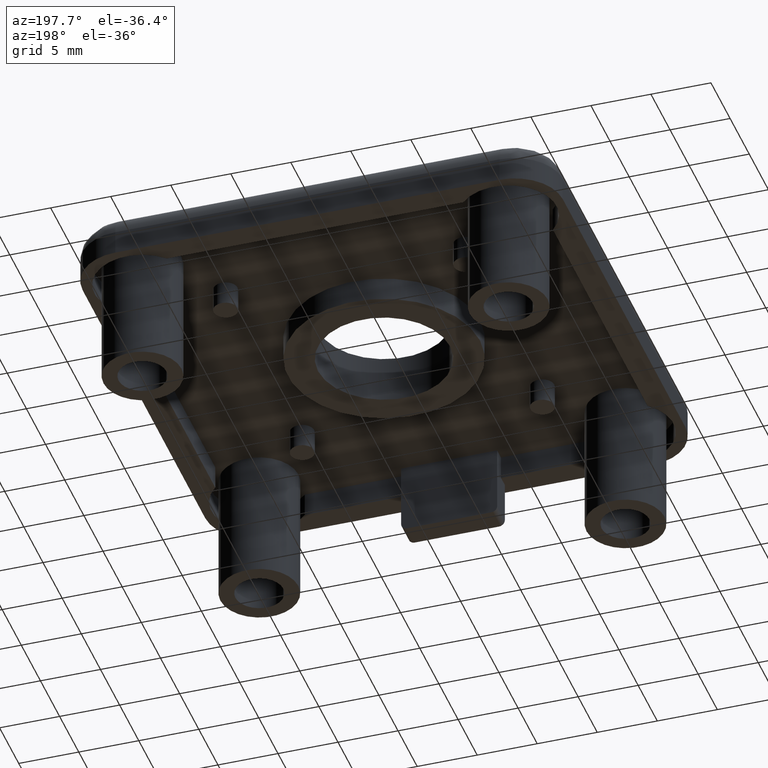
[diagram: clean part render]
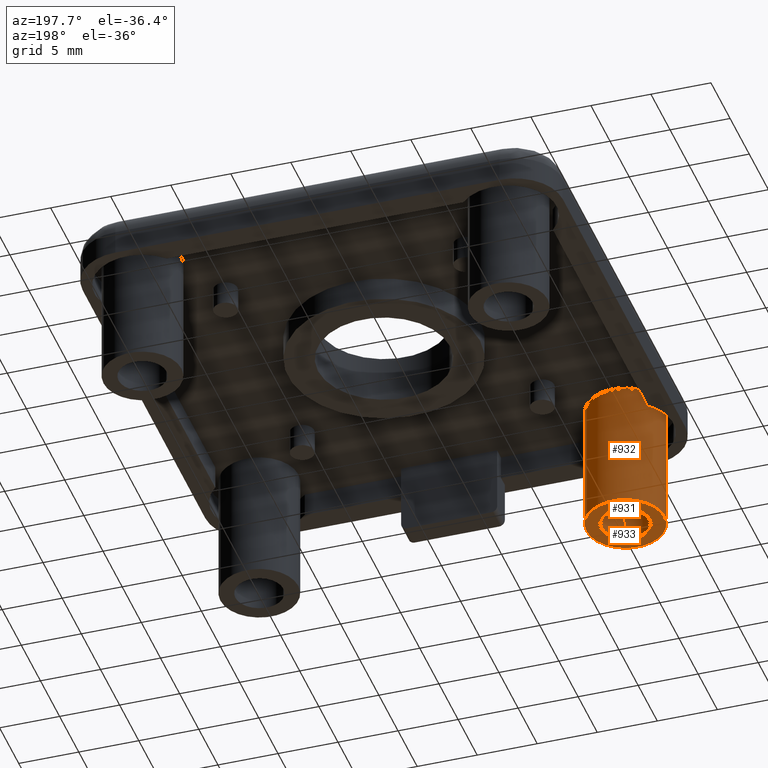
[diagram: same view with one multi-face feature highlighted, each face labeled with its STEP entity id]
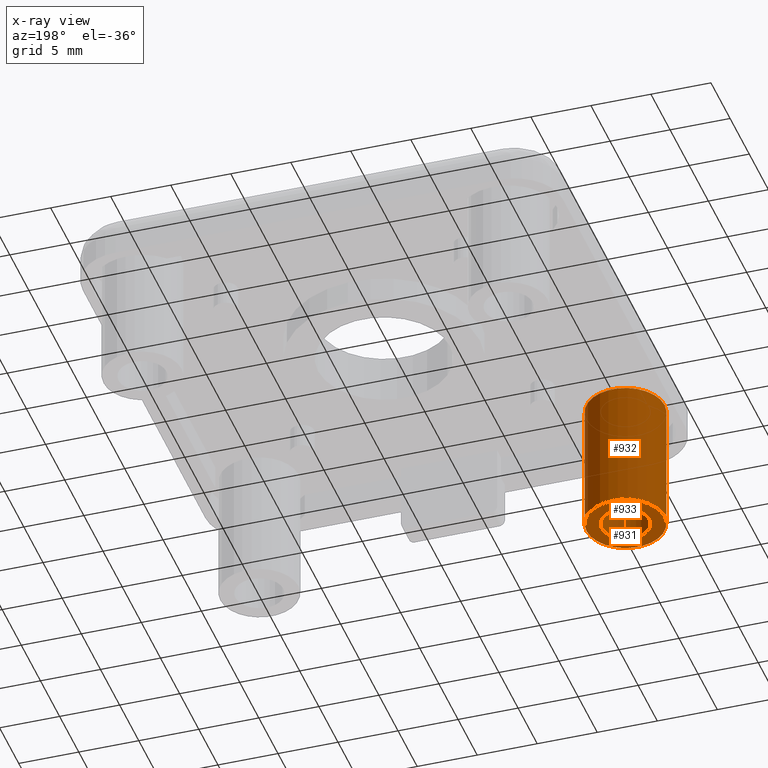
[diagram: x-ray of the same camera — body ghosted, the whole feature saturated]
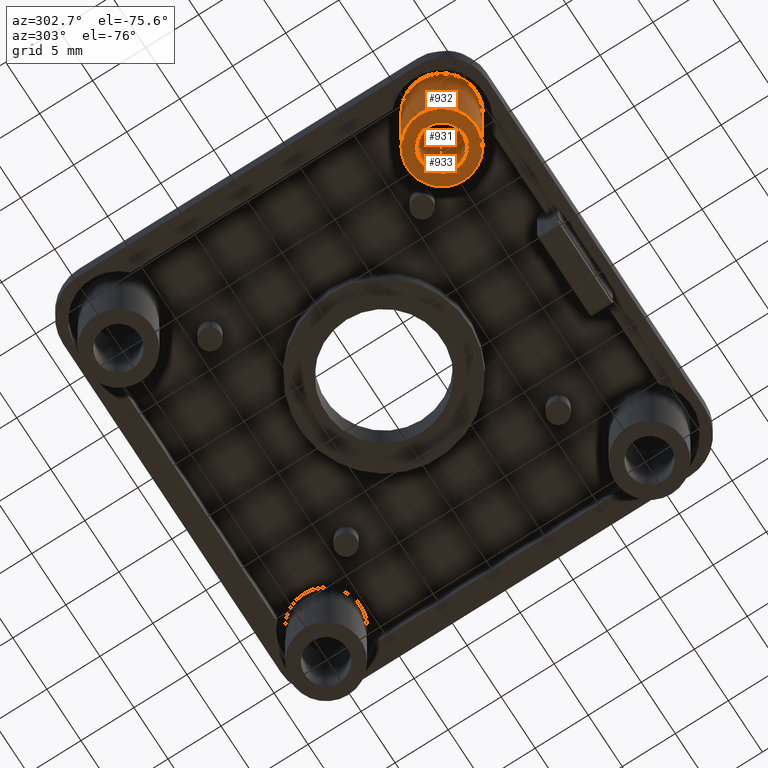
[diagram: same view with one multi-face feature highlighted, each face labeled with its STEP entity id]
A machine part, auxiliary view. The highlighted faces form ONE feature: a stepped (counterbored) hole: 2 coaxial cylindrical walls of radii 2 -> 3.25 mm joined by 1 annular planar shoulder face(s). The faces share edges in the B-rep.
The next image is the same camera in x-ray: the body ghosted and the whole hole feature saturated, so the bore chain is visible through the body.
A second angle (auxiliary view) of the same feature is appended — it is thin or edge-on in the first view.
Their STEP definitions:
[1] entity #932 (Cylinder):
#90=FACE_OUTER_BOUND('',#164,.T.);
#164=EDGE_LOOP('',(#744,#745,#746,#747));
#247=LINE('',#1583,#317);
#317=VECTOR('',#1277,3.25);
#377=CIRCLE('',#1045,3.25);
#382=CIRCLE('',#1052,3.25);
#461=VERTEX_POINT('',#1569);
#466=VERTEX_POINT('',#1582);
#562=EDGE_CURVE('',#461,#461,#377,.T.);
#568=EDGE_CURVE('',#461,#466,#247,.T.);
#569=EDGE_CURVE('',#466,#466,#382,.T.);
#744=ORIENTED_EDGE('',*,*,#562,.F.);
#745=ORIENTED_EDGE('',*,*,#568,.T.);
#746=ORIENTED_EDGE('',*,*,#569,.T.);
#747=ORIENTED_EDGE('',*,*,#568,.F.);
#890=CYLINDRICAL_SURFACE('',#1051,3.25);
#932=ADVANCED_FACE('',(#90),#890,.T.);
#1045=AXIS2_PLACEMENT_3D('',#1570,#1262,#1263);
#1051=AXIS2_PLACEMENT_3D('',#1581,#1275,#1276);
#1052=AXIS2_PLACEMENT_3D('',#1584,#1278,#1279);
#1262=DIRECTION('center_axis',(0.,0.,1.));
#1263=DIRECTION('ref_axis',(-1.,0.,0.));
#1275=DIRECTION('center_axis',(0.,0.,1.));
#1276=DIRECTION('ref_axis',(-1.,0.,0.));
#1277=DIRECTION('',(0.,0.,-1.));
#1278=DIRECTION('center_axis',(0.,0.,1.));
#1279=DIRECTION('ref_axis',(-1.,0.,0.));
#1569=CARTESIAN_POINT('',(-12.,-15.25,2.));
#1570=CARTESIAN_POINT('Origin',(-15.25,-15.25,2.));
#1581=CARTESIAN_POINT('Origin',(-15.25,-15.25,2.));
#1582=CARTESIAN_POINT('',(-12.,-15.25,-9.));
#1583=CARTESIAN_POINT('',(-12.,-15.25,2.));
#1584=CARTESIAN_POINT('Origin',(-15.25,-15.25,-9.));
[2] entity #931 (Cylinder):
#89=FACE_OUTER_BOUND('',#163,.T.);
#163=EDGE_LOOP('',(#740,#741,#742,#743));
#246=LINE('',#1579,#316);
#316=VECTOR('',#1272,2.);
#380=CIRCLE('',#1049,2.);
#381=CIRCLE('',#1050,2.);
#464=VERTEX_POINT('',#1576);
#465=VERTEX_POINT('',#1578);
#565=EDGE_CURVE('',#464,#464,#380,.T.);
#566=EDGE_CURVE('',#464,#465,#246,.T.);
#567=EDGE_CURVE('',#465,#465,#381,.T.);
#740=ORIENTED_EDGE('',*,*,#565,.T.);
#741=ORIENTED_EDGE('',*,*,#566,.T.);
#742=ORIENTED_EDGE('',*,*,#567,.F.);
#743=ORIENTED_EDGE('',*,*,#566,.F.);
#889=CYLINDRICAL_SURFACE('',#1048,2.);
#931=ADVANCED_FACE('',(#89),#889,.F.);
#1048=AXIS2_PLACEMENT_3D('',#1575,#1268,#1269);
#1049=AXIS2_PLACEMENT_3D('',#1577,#1270,#1271);
#1050=AXIS2_PLACEMENT_3D('',#1580,#1273,#1274);
#1268=DIRECTION('center_axis',(0.,0.,1.));
#1269=DIRECTION('ref_axis',(-1.,0.,0.));
#1270=DIRECTION('center_axis',(0.,0.,-1.));
#1271=DIRECTION('ref_axis',(-1.,0.,0.));
#1272=DIRECTION('',(0.,0.,1.));
#1273=DIRECTION('center_axis',(0.,0.,-1.));
#1274=DIRECTION('ref_axis',(-1.,0.,0.));
#1575=CARTESIAN_POINT('Origin',(-15.25,-15.25,2.));
#1576=CARTESIAN_POINT('',(-13.25,-15.25,-9.));
#1577=CARTESIAN_POINT('Origin',(-15.25,-15.25,-9.));
#1578=CARTESIAN_POINT('',(-13.25,-15.25,2.));
#1579=CARTESIAN_POINT('',(-13.25,-15.25,2.));
#1580=CARTESIAN_POINT('Origin',(-15.25,-15.25,2.));
[3] entity #933 (Plane):
#31=FACE_BOUND('',#166,.T.);
#49=PLANE('',#1053);
#91=FACE_OUTER_BOUND('',#165,.T.);
#165=EDGE_LOOP('',(#748));
#166=EDGE_LOOP('',(#749));
#380=CIRCLE('',#1049,2.);
#382=CIRCLE('',#1052,3.25);
#464=VERTEX_POINT('',#1576);
#466=VERTEX_POINT('',#1582);
#565=EDGE_CURVE('',#464,#464,#380,.T.);
#569=EDGE_CURVE('',#466,#466,#382,.T.);
#748=ORIENTED_EDGE('',*,*,#569,.F.);
#749=ORIENTED_EDGE('',*,*,#565,.F.);
#933=ADVANCED_FACE('',(#91,#31),#49,.T.);
#1049=AXIS2_PLACEMENT_3D('',#1577,#1270,#1271);
#1052=AXIS2_PLACEMENT_3D('',#1584,#1278,#1279);
#1053=AXIS2_PLACEMENT_3D('',#1585,#1280,#1281);
#1270=DIRECTION('center_axis',(0.,0.,-1.));
#1271=DIRECTION('ref_axis',(-1.,0.,0.));
#1278=DIRECTION('center_axis',(0.,0.,1.));
#1279=DIRECTION('ref_axis',(-1.,0.,0.));
#1280=DIRECTION('center_axis',(0.,0.,-1.));
#1281=DIRECTION('ref_axis',(-1.,0.,0.));
#1576=CARTESIAN_POINT('',(-13.25,-15.25,-9.));
#1577=CARTESIAN_POINT('Origin',(-15.25,-15.25,-9.));
#1582=CARTESIAN_POINT('',(-12.,-15.25,-9.));
#1584=CARTESIAN_POINT('Origin',(-15.25,-15.25,-9.));
#1585=CARTESIAN_POINT('Origin',(-15.25,-15.25,-9.));